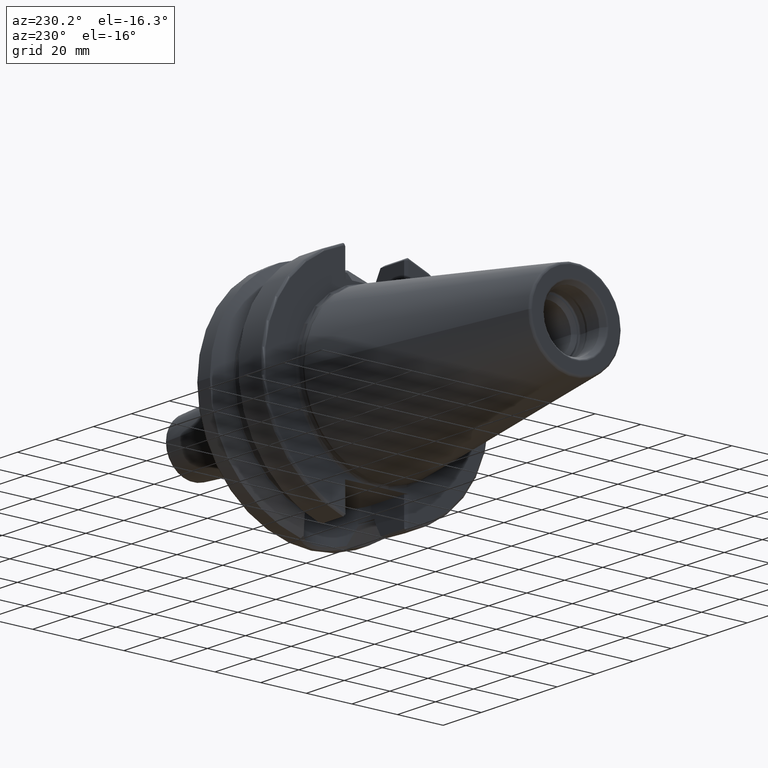
[diagram: clean part render]
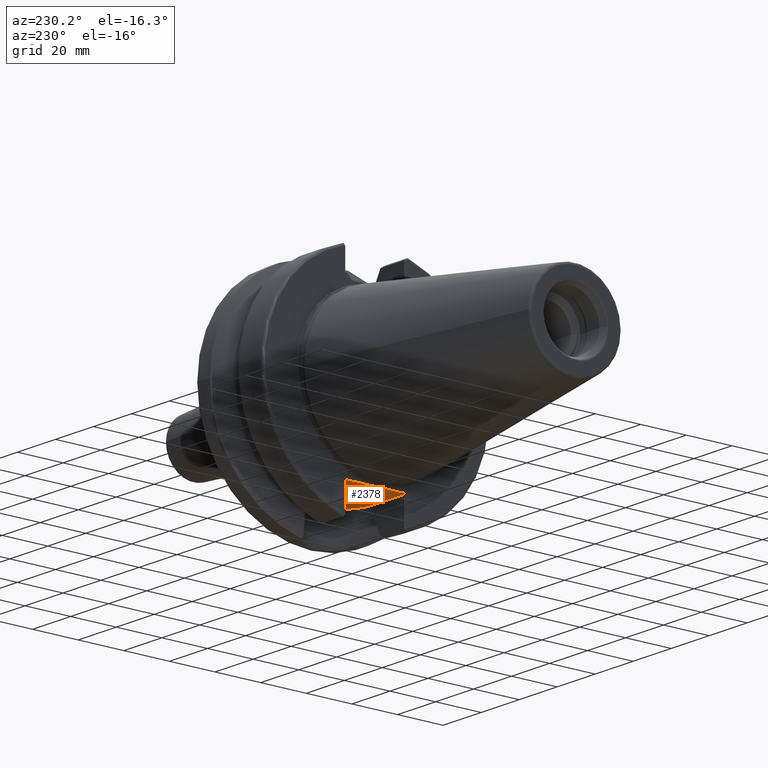
[diagram: same view with one face highlighted and labeled with its STEP entity id]
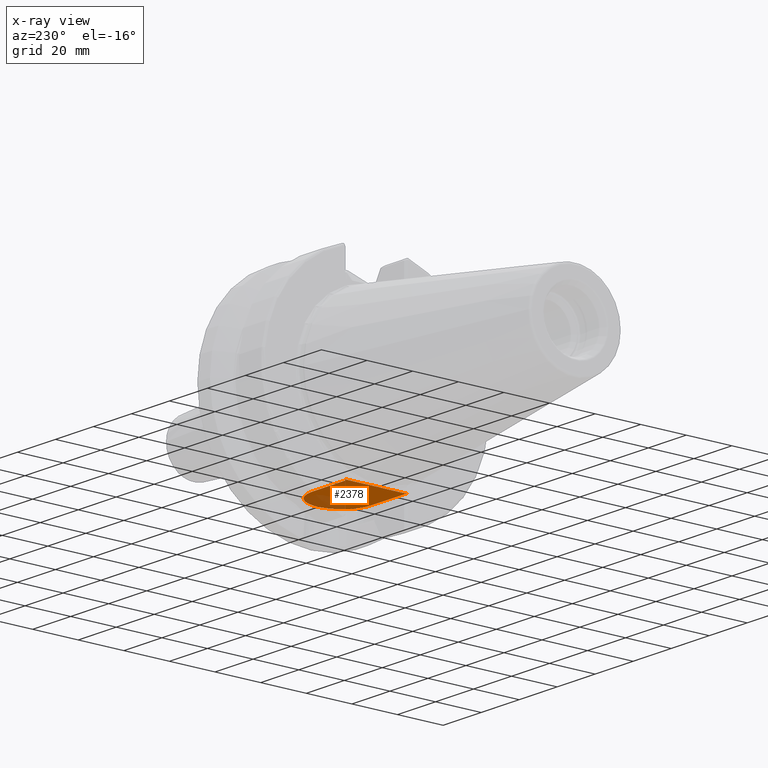
[diagram: x-ray of the same camera — body ghosted, the highlighted face saturated]
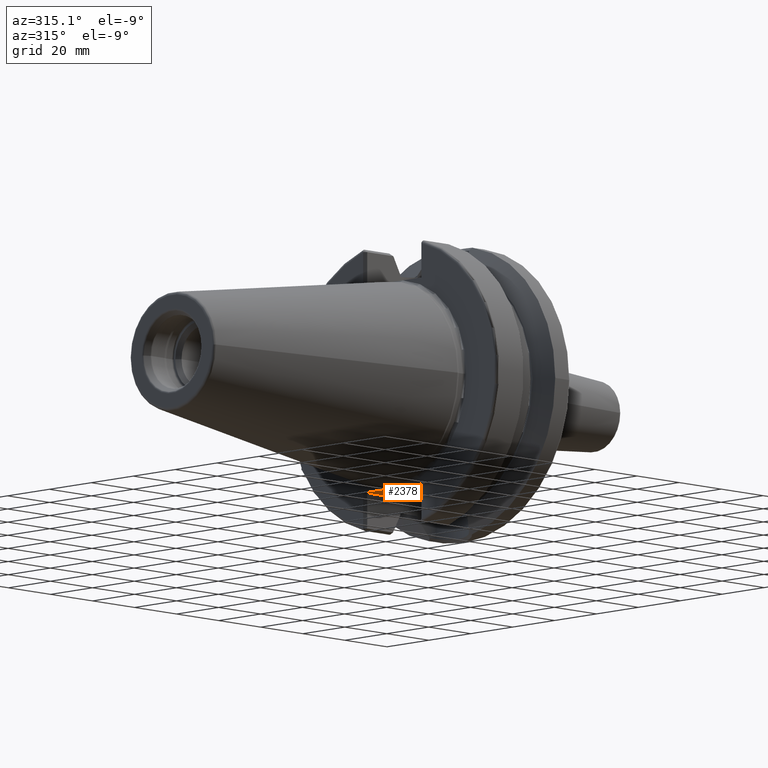
[diagram: same view with one face highlighted and labeled with its STEP entity id]
A machine part, auxiliary view. The second image highlights one B-rep face of the part: STEP entity #2378.
The next image is the same camera in x-ray: the body ghosted, the highlighted face saturated — about 23% of this face is hidden behind the body in this view.
A second angle (auxiliary view) of the same face is appended — the face is thin or edge-on in the first view.
In plain terms, the highlighted planar face has unit normal (0, 0, 1).
Its self-contained STEP definition (entity closure, byte-faithful):
#116=CARTESIAN_POINT('',(3.E0,5.151759408202E0,-3.52E1));
#117=CARTESIAN_POINT('',(3.E0,4.661054534870E0,-3.52E1));
#118=CARTESIAN_POINT('',(2.985185415827E0,3.679726334622E0,-3.52E1));
#119=CARTESIAN_POINT('',(2.950323079572E0,2.207949548567E0,-3.52E1));
#120=CARTESIAN_POINT('',(2.926055980585E0,7.360772187789E-1,-3.52E1));
#121=CARTESIAN_POINT('',(2.926055295134E0,-7.360096390892E-1,-3.52E1));
#122=CARTESIAN_POINT('',(2.950321957577E0,-2.207902449886E0,-3.52E1));
#123=CARTESIAN_POINT('',(2.985185074233E0,-3.679708044781E0,-3.52E1));
#124=CARTESIAN_POINT('',(3.E0,-4.661048861242E0,-3.52E1));
#125=CARTESIAN_POINT('',(3.E0,-5.151759408202E0,-3.52E1));
#147=DIRECTION('',(7.071067811865E-1,-7.071067811865E-1,0.E0));
#148=VECTOR('',#147,1.414213562373E0);
#149=CARTESIAN_POINT('',(3.E0,1.39025E1,-3.52E1));
#150=LINE('',#149,#148);
#733=DIRECTION('',(-7.071067811865E-1,-7.071067811865E-1,0.E0));
#734=VECTOR('',#733,1.414213562373E0);
#735=CARTESIAN_POINT('',(4.E0,-1.29025E1,-3.52E1));
#736=LINE('',#735,#734);
#737=DIRECTION('',(-1.E0,0.E0,0.E0));
#738=VECTOR('',#737,1.73475E1);
#739=CARTESIAN_POINT('',(2.13475E1,1.29025E1,-3.52E1));
#740=LINE('',#739,#738);
#741=DIRECTION('',(0.E0,-1.E0,0.E0));
#742=VECTOR('',#741,8.750740591798E0);
#743=CARTESIAN_POINT('',(3.E0,1.39025E1,-3.52E1));
#744=LINE('',#743,#742);
#745=DIRECTION('',(0.E0,-1.E0,0.E0));
#746=VECTOR('',#745,8.750740591798E0);
#747=CARTESIAN_POINT('',(3.E0,-5.151759408202E0,-3.52E1));
#748=LINE('',#747,#746);
#749=DIRECTION('',(1.E0,0.E0,0.E0));
#750=VECTOR('',#749,1.73475E1);
#751=CARTESIAN_POINT('',(4.E0,-1.29025E1,-3.52E1));
#752=LINE('',#751,#750);
#753=CARTESIAN_POINT('',(2.13475E1,0.E0,-3.52E1));
#754=DIRECTION('',(0.E0,0.E0,1.E0));
#755=DIRECTION('',(0.E0,-1.E0,0.E0));
#756=AXIS2_PLACEMENT_3D('',#753,#754,#755);
#1314=CARTESIAN_POINT('',(2.13475E1,-1.29025E1,-3.52E1));
#1315=CARTESIAN_POINT('',(2.13475E1,1.29025E1,-3.52E1));
#1316=VERTEX_POINT('',#1314);
#1317=VERTEX_POINT('',#1315);
#1318=CARTESIAN_POINT('',(3.E0,5.151759408202E0,-3.52E1));
#1319=VERTEX_POINT('',#1318);
#1320=CARTESIAN_POINT('',(3.E0,-5.151759408202E0,-3.52E1));
#1321=VERTEX_POINT('',#1320);
#1367=CARTESIAN_POINT('',(4.E0,1.29025E1,-3.52E1));
#1369=VERTEX_POINT('',#1367);
#1371=CARTESIAN_POINT('',(3.E0,1.39025E1,-3.52E1));
#1373=VERTEX_POINT('',#1371);
#1377=CARTESIAN_POINT('',(3.E0,-1.39025E1,-3.52E1));
#1378=VERTEX_POINT('',#1377);
#1379=CARTESIAN_POINT('',(4.E0,-1.29025E1,-3.52E1));
#1381=VERTEX_POINT('',#1379);
#2363=CARTESIAN_POINT('',(0.E0,0.E0,-3.52E1));
#2364=DIRECTION('',(0.E0,0.E0,1.E0));
#2365=DIRECTION('',(1.E0,0.E0,0.E0));
#2366=AXIS2_PLACEMENT_3D('',#2363,#2364,#2365);
#2367=PLANE('',#2366);
#2368=ORIENTED_EDGE('',*,*,#1639,.T.);
#2369=ORIENTED_EDGE('',*,*,#1620,.F.);
#2370=ORIENTED_EDGE('',*,*,#1584,.T.);
#2371=ORIENTED_EDGE('',*,*,#1563,.T.);
#2372=ORIENTED_EDGE('',*,*,#1596,.T.);
#2373=ORIENTED_EDGE('',*,*,#2358,.F.);
#2374=ORIENTED_EDGE('',*,*,#1794,.T.);
#2375=ORIENTED_EDGE('',*,*,#1888,.T.);
#2376=EDGE_LOOP('',(#2368,#2369,#2370,#2371,#2372,#2373,#2374,#2375));
#2377=FACE_OUTER_BOUND('',#2376,.F.);
#2378=ADVANCED_FACE('',(#2377),#2367,.F.);
#126=B_SPLINE_CURVE_WITH_KNOTS('',3,(#116,#117,#118,#119,#120,#121,#122,#123,
#124,#125),.UNSPECIFIED.,.F.,.F.,(4,1,1,1,1,1,1,4),(0.E0,1.428571428571E-1,
2.857142857143E-1,4.285714285714E-1,5.714285714286E-1,7.142857142857E-1,
8.571428571429E-1,1.E0),.UNSPECIFIED.);
#757=CIRCLE('',#756,1.29025E1);
#1563=EDGE_CURVE('',#1319,#1321,#126,.T.);
#1584=EDGE_CURVE('',#1373,#1319,#744,.T.);
#1596=EDGE_CURVE('',#1321,#1378,#748,.T.);
#1620=EDGE_CURVE('',#1373,#1369,#150,.T.);
#1639=EDGE_CURVE('',#1317,#1369,#740,.T.);
#1794=EDGE_CURVE('',#1381,#1316,#752,.T.);
#1888=EDGE_CURVE('',#1316,#1317,#757,.T.);
#2358=EDGE_CURVE('',#1381,#1378,#736,.T.);